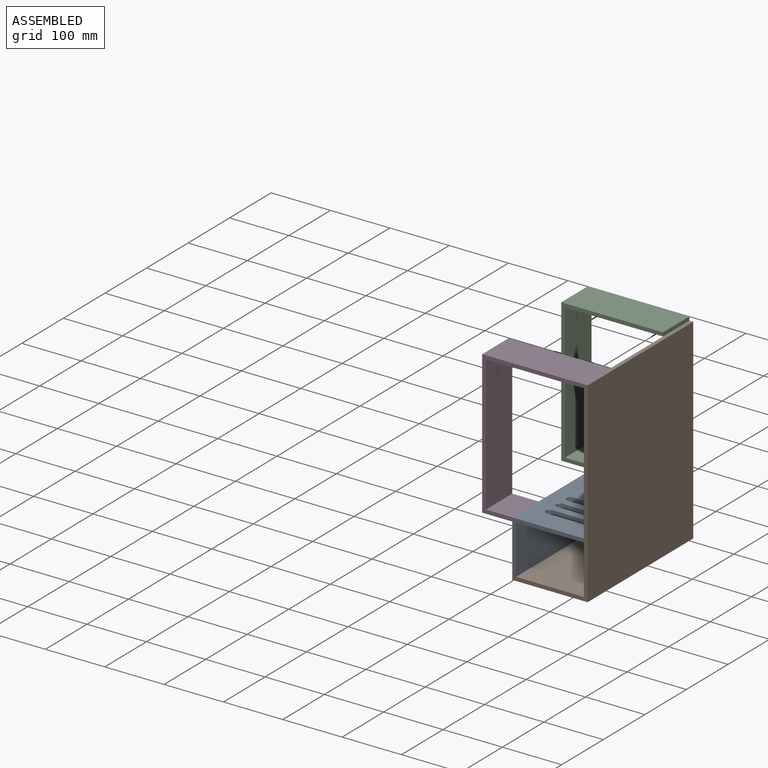
[diagram: assembled view]
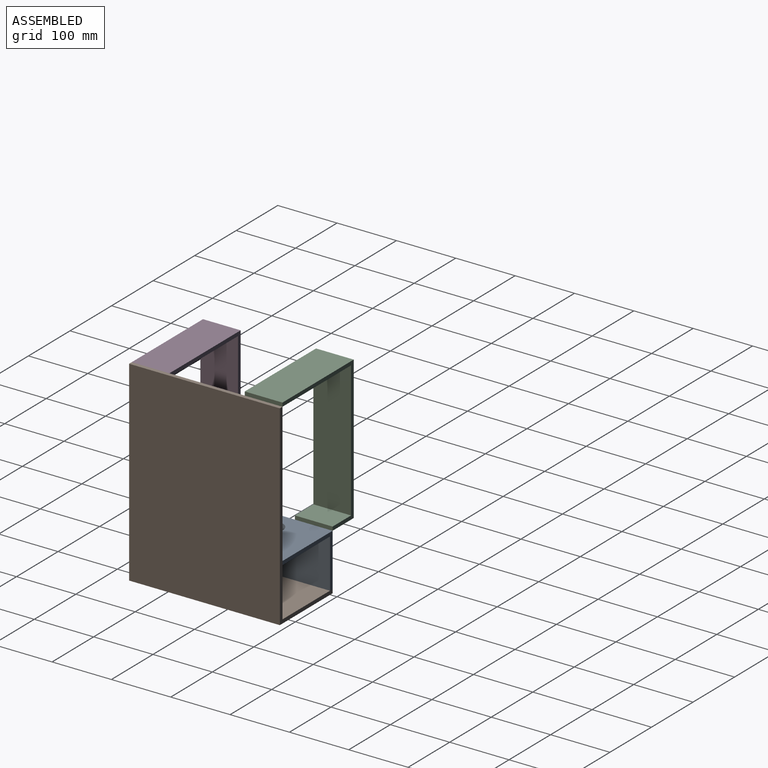
[diagram: assembled view, second angle]
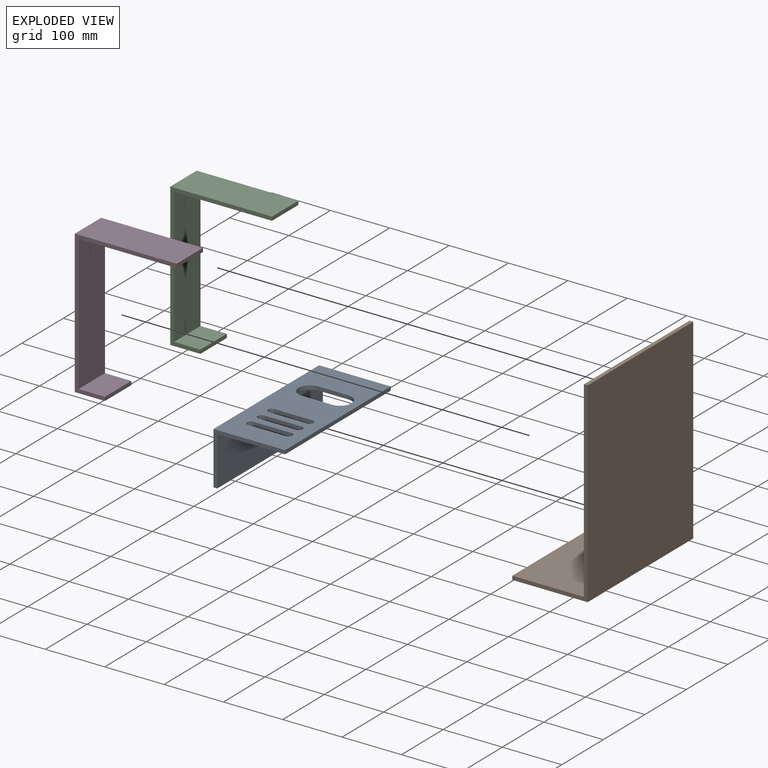
[diagram: exploded view]
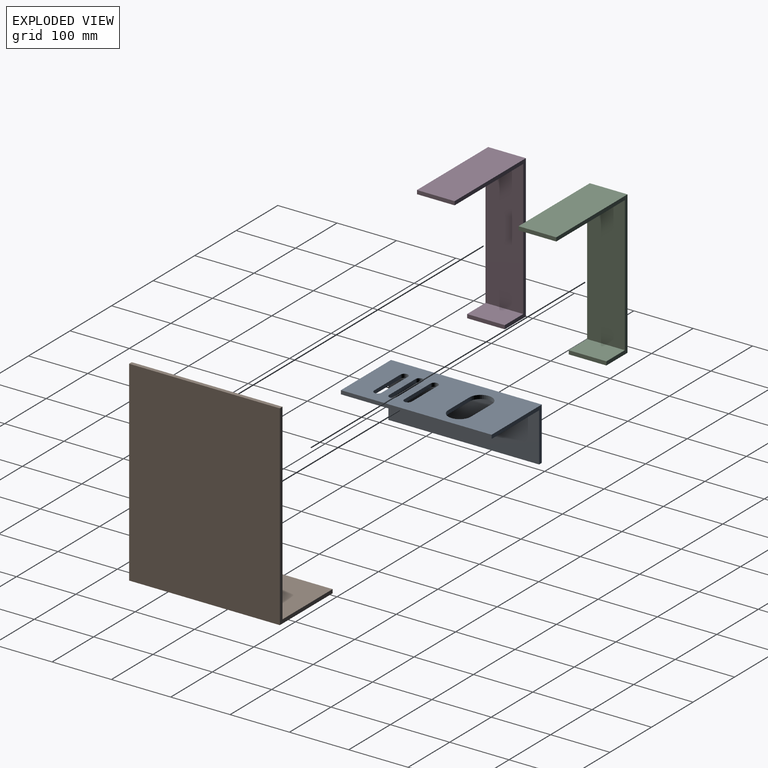
[diagram: exploded view, second angle]
ASSEMBLY  parts=4 mates=2
PART A: 24 faces, bbox 120.7x254x88.9 mm
  f0: plane 254x114.3mm, normal (0,0,-1), area 23157.3mm2, adj f2,f3,f4,f5,f6,f7,f8,f10
  f1: plane 254x120.65mm, normal (0,0,1), area 24770.2mm2, adj f2,f3,f4,f5,f6,f7,f8,f9
  f2: plane 120.65x88.9mm, normal (0,-1,0), area 1290.3mm2, adj f0,f1,f4,f9,f10,f11
  f3: plane 120.65x88.9mm, normal (0,1,0), area 1290.3mm2, adj f0,f1,f4,f9,f10,f11
  f4: plane 254x6.35mm, normal (-1,0,0), area 1612.9mm2, adj f0,f1,f2,f3
  f5: plane 50.8x6.35mm, normal (0,-1,0), area 322.6mm2, adj f0,f1,f6,f8
  f6: cylinder r=19.05mm len=38.1mm, axis (0,0,1), area 382.1mm2, adj f0,f1,f5,f7
  f7: plane 50.48x6.35mm, normal (0,1,0), area 320.6mm2, adj f0,f1,f6,f8
  f8: cylinder r=19.05mm len=38.1mm, axis (0,0,1), area 380mm2, adj f0,f1,f5,f7
  f9: plane 254x88.9mm, normal (1,0,0), area 22580.6mm2, adj f1,f2,f3,f11
  f10: plane 254x82.55mm, normal (-1,0,0), area 20967.7mm2, adj f0,f2,f3,f11
  f11: plane 254x6.35mm, normal (0,0,-1), area 1612.9mm2, adj f2,f3,f9,f10
  f12: cylinder r=6.35mm len=12.7mm, axis (0,0,1), area 126.7mm2, adj f0,f1,f13,f15
  f13: plane 63.5x6.35mm, normal (0,1,0), area 403.2mm2, adj f0,f1,f12,f14
  f14: cylinder r=6.35mm len=12.7mm, axis (0,0,1), area 126.7mm2, adj f0,f1,f13,f15
  f15: plane 63.5x6.35mm, normal (0,-1,0), area 403.2mm2, adj f0,f1,f12,f14
  f16: cylinder r=6.35mm len=12.7mm, axis (0,0,1), area 126.7mm2, adj f0,f1,f17,f19
  f17: plane 63.5x6.35mm, normal (0,1,0), area 403.2mm2, adj f0,f1,f16,f18
  f18: cylinder r=6.35mm len=12.7mm, axis (0,0,1), area 126.7mm2, adj f0,f1,f17,f19
  f19: plane 63.5x6.35mm, normal (0,-1,0), area 403.2mm2, adj f0,f1,f16,f18
  f20: cylinder r=6.35mm len=12.7mm, axis (0,0,1), area 126.7mm2, adj f0,f1,f21,f23
  f21: plane 63.5x6.35mm, normal (0,1,0), area 403.2mm2, adj f0,f1,f20,f22
  f22: cylinder r=6.35mm len=12.7mm, axis (0,0,1), area 126.7mm2, adj f0,f1,f21,f23
  f23: plane 63.5x6.35mm, normal (0,-1,0), area 403.2mm2, adj f0,f1,f20,f22
PART B: 8 faces, bbox 127x254x330.2 mm
  f0: plane 254x120.65mm, normal (0,0,1), area 30645.1mm2, adj f1,f5,f6,f7
  f1: plane 254x6.35mm, normal (-1,0,0), area 1612.9mm2, adj f0,f2,f6,f7
  f2: plane 254x127mm, normal (0,0,-1), area 32258mm2, adj f1,f3,f6,f7
  f3: plane 330.2x254mm, normal (1,0,0), area 83870.8mm2, adj f2,f4,f6,f7
  f4: plane 254x6.35mm, normal (0,0,1), area 1612.9mm2, adj f3,f5,f6,f7
  f5: plane 323.85x254mm, normal (-1,0,0), area 82257.9mm2, adj f0,f4,f6,f7
  f6: plane 330.2x127mm, normal (0,-1,0), area 2862.9mm2, adj f0,f1,f2,f3,f4,f5
  f7: plane 330.2x127mm, normal (0,1,0), area 2862.9mm2, adj f0,f1,f2,f3,f4,f5
PART C: 10 faces, bbox 63.5x171.5x241.3 mm
  f0: plane 63.5x50.8mm, normal (0,0,-1), area 3225.8mm2, adj f1,f7,f8,f9
  f1: plane 241.3x63.5mm, normal (0,1,0), area 15322.6mm2, adj f0,f2,f8,f9
  f2: plane 171.45x63.5mm, normal (0,0,1), area 10887.1mm2, adj f1,f3,f8,f9
  f3: plane 63.5x6.35mm, normal (0,-1,0), area 403.2mm2, adj f2,f4,f8,f9
  f4: plane 165.1x63.5mm, normal (0,0,-1), area 10483.8mm2, adj f3,f5,f8,f9
  f5: plane 228.6x63.5mm, normal (0,-1,0), area 14516.1mm2, adj f4,f6,f8,f9
  f6: plane 63.5x44.45mm, normal (0,0,1), area 2822.6mm2, adj f5,f7,f8,f9
  f7: plane 63.5x6.35mm, normal (0,-1,0), area 403.2mm2, adj f0,f6,f8,f9
  f8: plane 241.3x171.45mm, normal (1,0,0), area 2862.9mm2, adj f0,f1,f2,f3,f4,f5,f6,f7
  f9: plane 241.3x171.45mm, normal (-1,0,0), area 2862.9mm2, adj f0,f1,f2,f3,f4,f5,f6,f7
PART D: same geometry as C
PLACE A rot(axis=(0,0,1),180deg) t=(-30.09,-129.82,-38.8)mm
PLACE B t=(-30.09,-2.82,37.4)mm fixed
PLACE C rot(axis=(0,0,1),90deg) t=(27.06,-66.32,-32.45)mm
PLACE D rot(axis=(0,0,1),90deg) t=(27.06,-256.82,-38.8)mm
MATE fastened A.f9 <-> B.f1  axis (-1,0,0) through (-93.59,-129.82,-121.35)mm
MATE fastened D.f3 <-> B.f5  axis (1,0,0) through (27.06,-256.82,202.5)mm
